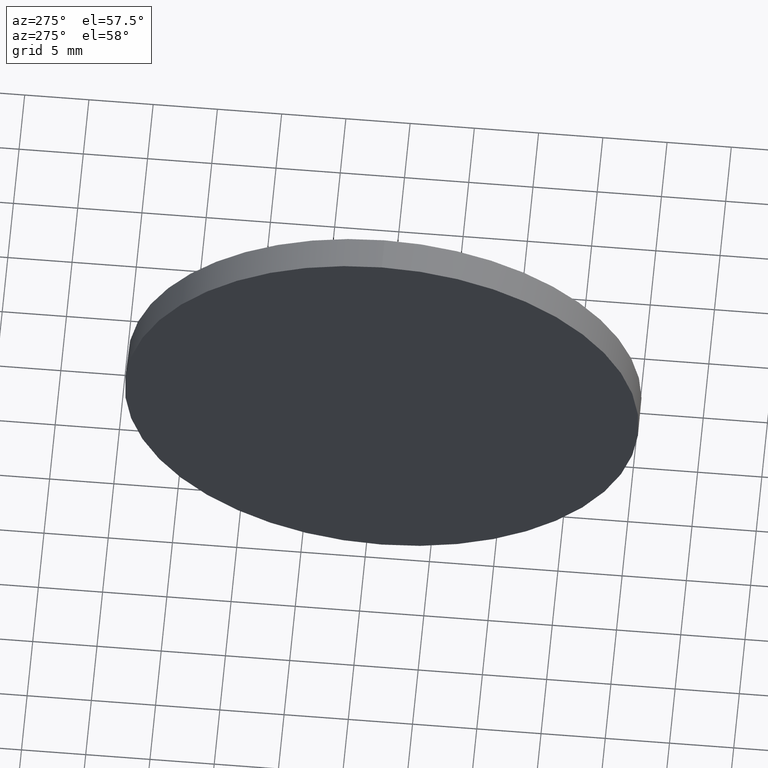
[diagram: clean part render]
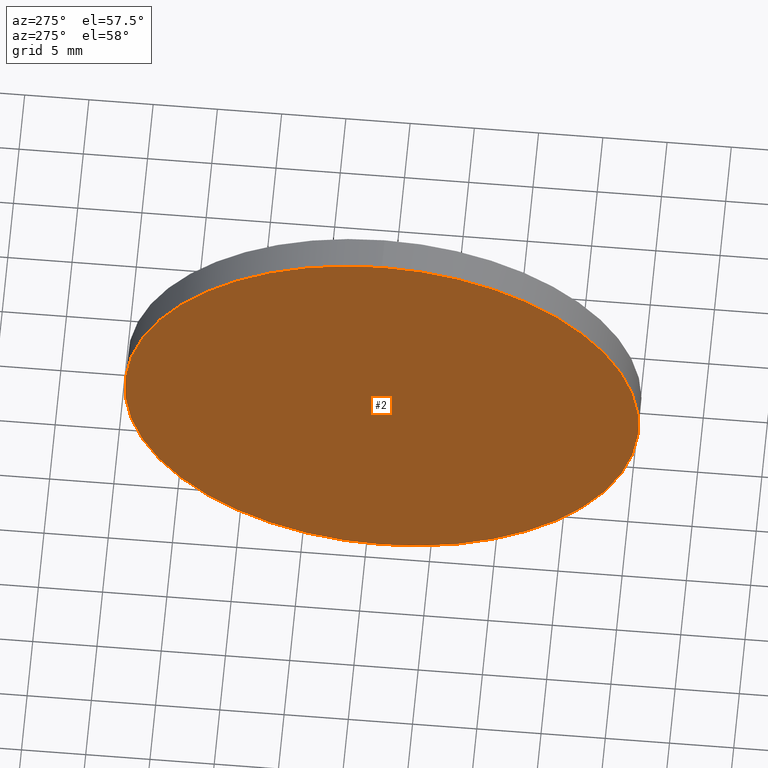
[diagram: same view with one face highlighted and labeled with its STEP entity id]
A machine part, auxiliary view. The second image highlights one B-rep face of the part: STEP entity #2.
In plain terms, the highlighted planar face has unit normal (1, 0, 0).
Its self-contained STEP definition (entity closure, byte-faithful):
#1 = ORIENTED_EDGE ( 'NONE', *, *, #70, .T. ) ;
#2 = ADVANCED_FACE ( 'NONE', ( #153 ), #62, .F. ) ;
#27 = CARTESIAN_POINT ( 'NONE',  ( 390.6958291310484700, 28.77305965944879100, 0.0000000000000000000 ) ) ;
#36 = AXIS2_PLACEMENT_3D ( 'NONE', #137, #158, #74 ) ;
#37 = DIRECTION ( 'NONE',  ( 0.0000000000000000000, 0.0000000000000000000, 1.000000000000000000 ) ) ;
#41 = DIRECTION ( 'NONE',  ( 0.0000000000000000000, 0.0000000000000000000, 1.000000000000000000 ) ) ;
#59 = VERTEX_POINT ( 'NONE', #93 ) ;
#62 = PLANE ( 'NONE',  #36 ) ;
#67 = DIRECTION ( 'NONE',  ( -1.000000000000000000, -0.0000000000000000000, -0.0000000000000000000 ) ) ;
#70 = EDGE_CURVE ( 'NONE', #156, #59, #139, .T. ) ;
#74 = DIRECTION ( 'NONE',  ( 0.0000000000000000000, 0.0000000000000000000, -1.000000000000000000 ) ) ;
#92 = CIRCLE ( 'NONE', #185, 20.00000000000000400 ) ;
#93 = CARTESIAN_POINT ( 'NONE',  ( 390.6958291310484700, 28.77305965944879100, 20.00000000000000400 ) ) ;
#108 = CARTESIAN_POINT ( 'NONE',  ( 390.6958291310484700, 28.77305965944879400, -20.00000000000000400 ) ) ;
#137 = CARTESIAN_POINT ( 'NONE',  ( 390.6958291310484700, 28.77305965944879100, 0.0000000000000000000 ) ) ;
#139 = CIRCLE ( 'NONE', #164, 20.00000000000000400 ) ;
#151 = EDGE_LOOP ( 'NONE', ( #155, #1 ) ) ;
#152 = DIRECTION ( 'NONE',  ( -1.000000000000000000, -0.0000000000000000000, -0.0000000000000000000 ) ) ;
#153 = FACE_OUTER_BOUND ( 'NONE', #151, .T. ) ;
#155 = ORIENTED_EDGE ( 'NONE', *, *, #183, .T. ) ;
#156 = VERTEX_POINT ( 'NONE', #108 ) ;
#158 = DIRECTION ( 'NONE',  ( 1.000000000000000000, 0.0000000000000000000, 0.0000000000000000000 ) ) ;
#164 = AXIS2_PLACEMENT_3D ( 'NONE', #181, #67, #37 ) ;
#181 = CARTESIAN_POINT ( 'NONE',  ( 390.6958291310484700, 28.77305965944879100, 0.0000000000000000000 ) ) ;
#183 = EDGE_CURVE ( 'NONE', #59, #156, #92, .T. ) ;
#185 = AXIS2_PLACEMENT_3D ( 'NONE', #27, #152, #41 ) ;